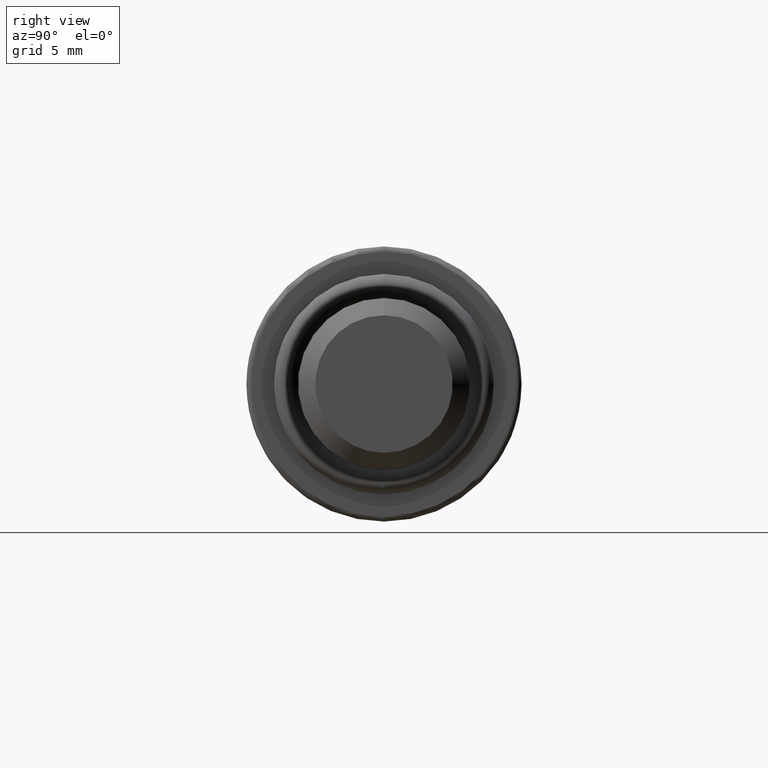
[diagram: clean part render]
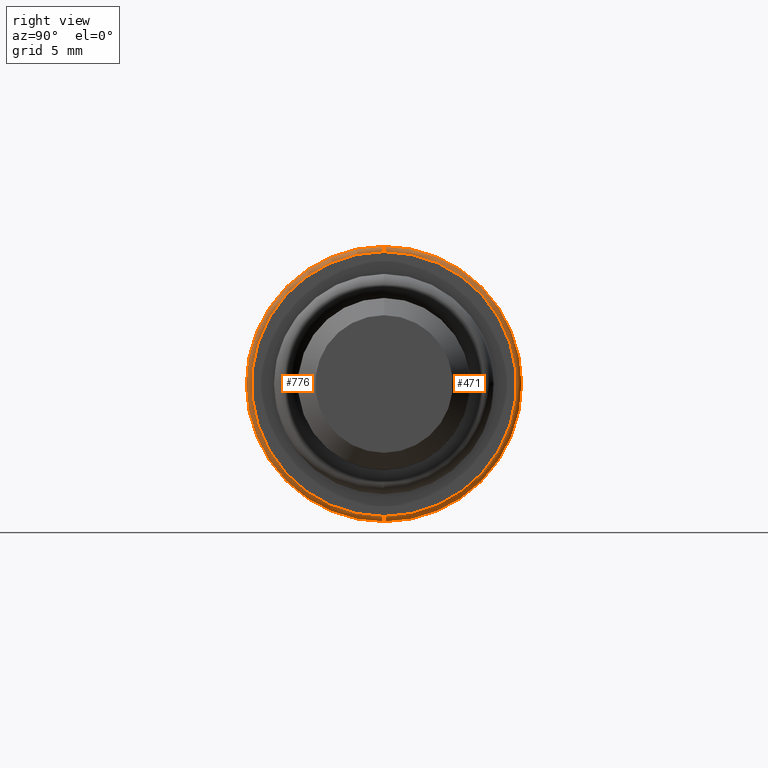
[diagram: same view with one multi-face feature highlighted, each face labeled with its STEP entity id]
A machine part, right view. The highlighted faces form ONE feature: a constant-radius fillet chain: 2 tangent blend faces with common blend radius 0.3 mm. The faces share edges in the B-rep.
Their STEP definitions:
[1] entity #776 (Torus):
#6 = DIRECTION ( 'NONE',  ( 0.0000000000000000000, 1.224646799147353200E-016, 1.000000000000000000 ) ) ;
#21 = EDGE_CURVE ( 'NONE', #293, #30, #147, .T. ) ;
#30 = VERTEX_POINT ( 'NONE', #229 ) ;
#37 = CARTESIAN_POINT ( 'NONE',  ( -0.2999999999999999300, 0.0000000000000000000, -8.000000000000000000 ) ) ;
#42 = ORIENTED_EDGE ( 'NONE', *, *, #21, .F. ) ;
#72 = ORIENTED_EDGE ( 'NONE', *, *, #403, .F. ) ;
#79 = AXIS2_PLACEMENT_3D ( 'NONE', #110, #544, #172 ) ;
#110 = CARTESIAN_POINT ( 'NONE',  ( -0.2999999999999999300, 0.0000000000000000000, 0.0000000000000000000 ) ) ;
#112 = DIRECTION ( 'NONE',  ( 0.0000000000000000000, 0.0000000000000000000, -1.000000000000000000 ) ) ;
#131 = VERTEX_POINT ( 'NONE', #37 ) ;
#147 = CIRCLE ( 'NONE', #603, 0.2999999999999999300 ) ;
#172 = DIRECTION ( 'NONE',  ( 0.0000000000000000000, 0.0000000000000000000, -1.000000000000000000 ) ) ;
#181 = DIRECTION ( 'NONE',  ( 0.0000000000000000000, -1.000000000000000000, 0.0000000000000000000 ) ) ;
#189 = EDGE_CURVE ( 'NONE', #131, #784, #237, .T. ) ;
#229 = CARTESIAN_POINT ( 'NONE',  ( 0.0000000000000000000, 9.613477373306721400E-016, 7.700000000000000200 ) ) ;
#237 = CIRCLE ( 'NONE', #252, 0.2999999999999999300 ) ;
#252 = AXIS2_PLACEMENT_3D ( 'NONE', #625, #181, #746 ) ;
#260 = CARTESIAN_POINT ( 'NONE',  ( 0.0000000000000000000, 0.0000000000000000000, 0.0000000000000000000 ) ) ;
#280 = AXIS2_PLACEMENT_3D ( 'NONE', #260, #700, #321 ) ;
#286 = TOROIDAL_SURFACE ( 'NONE', #408, 7.700000000000000200, 0.2999999999999999900 ) ;
#293 = VERTEX_POINT ( 'NONE', #560 ) ;
#298 = CARTESIAN_POINT ( 'NONE',  ( 0.0000000000000000000, 0.0000000000000000000, -7.700000000000000200 ) ) ;
#302 = EDGE_LOOP ( 'NONE', ( #42, #338, #380, #72 ) ) ;
#301 = CIRCLE ( 'NONE', #79, 8.000000000000000000 ) ;
#321 = DIRECTION ( 'NONE',  ( 0.0000000000000000000, 0.0000000000000000000, -1.000000000000000000 ) ) ;
#338 = ORIENTED_EDGE ( 'NONE', *, *, #743, .F. ) ;
#380 = ORIENTED_EDGE ( 'NONE', *, *, #189, .T. ) ;
#403 = EDGE_CURVE ( 'NONE', #30, #784, #449, .T. ) ;
#408 = AXIS2_PLACEMENT_3D ( 'NONE', #483, #799, #112 ) ;
#440 = DIRECTION ( 'NONE',  ( 0.0000000000000000000, 1.000000000000000000, -1.224646799147353200E-016 ) ) ;
#449 = CIRCLE ( 'NONE', #280, 7.700000000000000200 ) ;
#483 = CARTESIAN_POINT ( 'NONE',  ( -0.2999999999999999300, 0.0000000000000000000, 0.0000000000000000000 ) ) ;
#544 = DIRECTION ( 'NONE',  ( -1.000000000000000000, -0.0000000000000000000, -0.0000000000000000000 ) ) ;
#560 = CARTESIAN_POINT ( 'NONE',  ( -0.2999999999999999300, 9.797174393178825700E-016, 8.000000000000000000 ) ) ;
#603 = AXIS2_PLACEMENT_3D ( 'NONE', #698, #440, #6 ) ;
#625 = CARTESIAN_POINT ( 'NONE',  ( -0.2999999999999999300, 0.0000000000000000000, -7.700000000000000200 ) ) ;
#643 = FACE_OUTER_BOUND ( 'NONE', #302, .T. ) ;
#698 = CARTESIAN_POINT ( 'NONE',  ( -0.2999999999999999300, 9.429780353434619000E-016, 7.700000000000000200 ) ) ;
#700 = DIRECTION ( 'NONE',  ( 1.000000000000000000, 0.0000000000000000000, 0.0000000000000000000 ) ) ;
#743 = EDGE_CURVE ( 'NONE', #131, #293, #301, .T. ) ;
#746 = DIRECTION ( 'NONE',  ( 0.0000000000000000000, 0.0000000000000000000, -1.000000000000000000 ) ) ;
#776 = ADVANCED_FACE ( 'NONE', ( #643 ), #286, .T. ) ;
#784 = VERTEX_POINT ( 'NONE', #298 ) ;
#799 = DIRECTION ( 'NONE',  ( 1.000000000000000000, 0.0000000000000000000, 0.0000000000000000000 ) ) ;
[2] entity #471 (Torus):
#6 = DIRECTION ( 'NONE',  ( 0.0000000000000000000, 1.224646799147353200E-016, 1.000000000000000000 ) ) ;
#21 = EDGE_CURVE ( 'NONE', #293, #30, #147, .T. ) ;
#25 = DIRECTION ( 'NONE',  ( -1.000000000000000000, -0.0000000000000000000, -0.0000000000000000000 ) ) ;
#30 = VERTEX_POINT ( 'NONE', #229 ) ;
#37 = CARTESIAN_POINT ( 'NONE',  ( -0.2999999999999999300, 0.0000000000000000000, -8.000000000000000000 ) ) ;
#55 = EDGE_LOOP ( 'NONE', ( #468, #421, #217, #818 ) ) ;
#80 = DIRECTION ( 'NONE',  ( 0.0000000000000000000, 0.0000000000000000000, -1.000000000000000000 ) ) ;
#131 = VERTEX_POINT ( 'NONE', #37 ) ;
#147 = CIRCLE ( 'NONE', #603, 0.2999999999999999300 ) ;
#178 = DIRECTION ( 'NONE',  ( 1.000000000000000000, 0.0000000000000000000, 0.0000000000000000000 ) ) ;
#181 = DIRECTION ( 'NONE',  ( 0.0000000000000000000, -1.000000000000000000, 0.0000000000000000000 ) ) ;
#189 = EDGE_CURVE ( 'NONE', #131, #784, #237, .T. ) ;
#217 = ORIENTED_EDGE ( 'NONE', *, *, #790, .F. ) ;
#221 = AXIS2_PLACEMENT_3D ( 'NONE', #398, #25, #466 ) ;
#225 = TOROIDAL_SURFACE ( 'NONE', #482, 7.700000000000000200, 0.2999999999999999900 ) ;
#229 = CARTESIAN_POINT ( 'NONE',  ( 0.0000000000000000000, 9.613477373306721400E-016, 7.700000000000000200 ) ) ;
#237 = CIRCLE ( 'NONE', #252, 0.2999999999999999300 ) ;
#247 = FACE_OUTER_BOUND ( 'NONE', #55, .T. ) ;
#252 = AXIS2_PLACEMENT_3D ( 'NONE', #625, #181, #746 ) ;
#274 = CIRCLE ( 'NONE', #221, 8.000000000000000000 ) ;
#293 = VERTEX_POINT ( 'NONE', #560 ) ;
#298 = CARTESIAN_POINT ( 'NONE',  ( 0.0000000000000000000, 0.0000000000000000000, -7.700000000000000200 ) ) ;
#325 = AXIS2_PLACEMENT_3D ( 'NONE', #552, #178, #618 ) ;
#398 = CARTESIAN_POINT ( 'NONE',  ( -0.2999999999999999300, 0.0000000000000000000, 0.0000000000000000000 ) ) ;
#421 = ORIENTED_EDGE ( 'NONE', *, *, #21, .T. ) ;
#440 = DIRECTION ( 'NONE',  ( 0.0000000000000000000, 1.000000000000000000, -1.224646799147353200E-016 ) ) ;
#454 = CARTESIAN_POINT ( 'NONE',  ( -0.2999999999999999300, 0.0000000000000000000, 0.0000000000000000000 ) ) ;
#466 = DIRECTION ( 'NONE',  ( 0.0000000000000000000, 0.0000000000000000000, -1.000000000000000000 ) ) ;
#468 = ORIENTED_EDGE ( 'NONE', *, *, #565, .F. ) ;
#471 = ADVANCED_FACE ( 'NONE', ( #247 ), #225, .T. ) ;
#482 = AXIS2_PLACEMENT_3D ( 'NONE', #454, #510, #80 ) ;
#510 = DIRECTION ( 'NONE',  ( 1.000000000000000000, 0.0000000000000000000, 0.0000000000000000000 ) ) ;
#552 = CARTESIAN_POINT ( 'NONE',  ( 0.0000000000000000000, 0.0000000000000000000, 0.0000000000000000000 ) ) ;
#560 = CARTESIAN_POINT ( 'NONE',  ( -0.2999999999999999300, 9.797174393178825700E-016, 8.000000000000000000 ) ) ;
#565 = EDGE_CURVE ( 'NONE', #293, #131, #274, .T. ) ;
#598 = CIRCLE ( 'NONE', #325, 7.700000000000000200 ) ;
#603 = AXIS2_PLACEMENT_3D ( 'NONE', #698, #440, #6 ) ;
#618 = DIRECTION ( 'NONE',  ( 0.0000000000000000000, 0.0000000000000000000, -1.000000000000000000 ) ) ;
#625 = CARTESIAN_POINT ( 'NONE',  ( -0.2999999999999999300, 0.0000000000000000000, -7.700000000000000200 ) ) ;
#698 = CARTESIAN_POINT ( 'NONE',  ( -0.2999999999999999300, 9.429780353434619000E-016, 7.700000000000000200 ) ) ;
#746 = DIRECTION ( 'NONE',  ( 0.0000000000000000000, 0.0000000000000000000, -1.000000000000000000 ) ) ;
#784 = VERTEX_POINT ( 'NONE', #298 ) ;
#790 = EDGE_CURVE ( 'NONE', #784, #30, #598, .T. ) ;
#818 = ORIENTED_EDGE ( 'NONE', *, *, #189, .F. ) ;